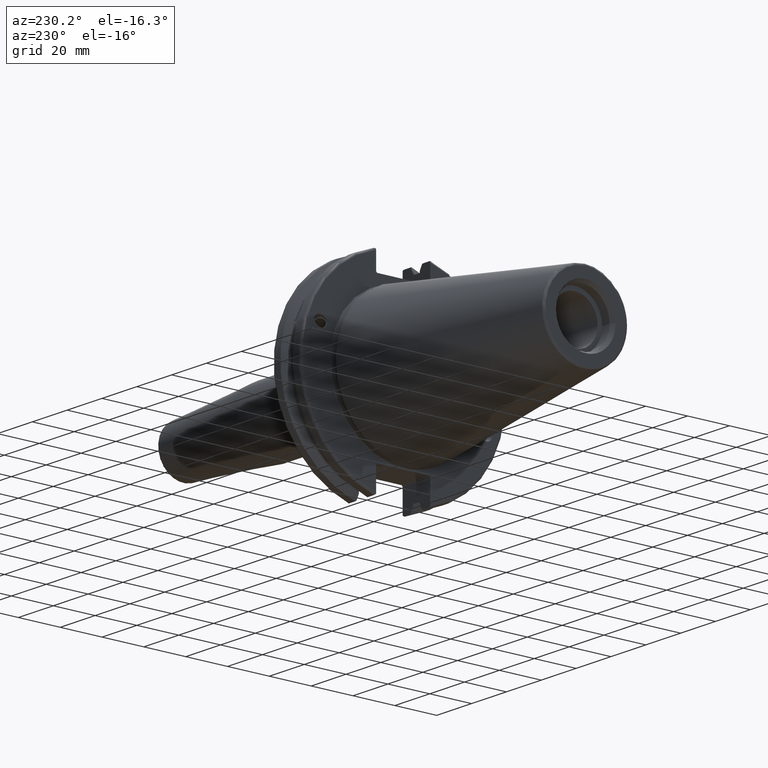
[diagram: clean part render]
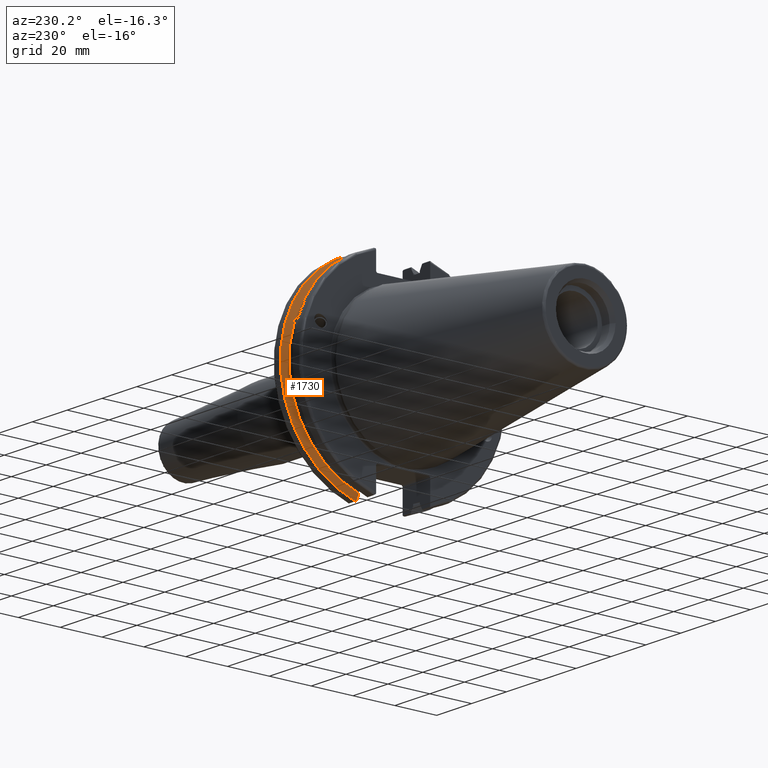
[diagram: same view with one face highlighted and labeled with its STEP entity id]
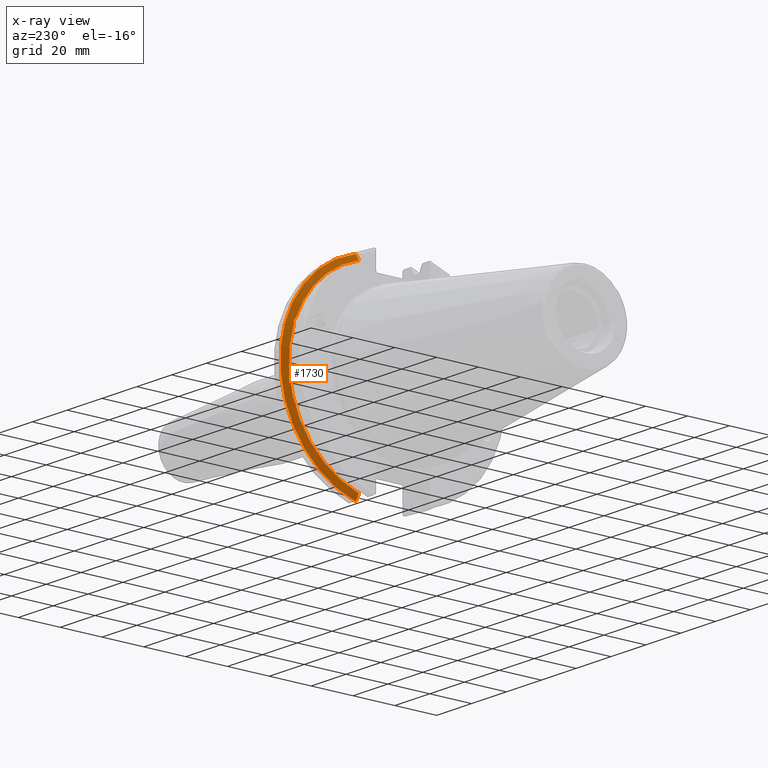
[diagram: x-ray of the same camera — body ghosted, the highlighted face saturated]
A machine part, auxiliary view. The second image highlights one B-rep face of the part: STEP entity #1730.
The next image is the same camera in x-ray: the body ghosted, the highlighted face saturated — about 0% of this face is hidden behind the body in this view.
In plain terms, the highlighted conical surface has half-angle 60 deg.
Its self-contained STEP definition (entity closure, byte-faithful):
#23=(
BOUNDED_CURVE()
B_SPLINE_CURVE(2,(#3375,#3376,#3377),.UNSPECIFIED.,.F.,.F.)
B_SPLINE_CURVE_WITH_KNOTS((3,3),(0.325260944932521,0.390084992222202),
 .UNSPECIFIED.)
CURVE()
GEOMETRIC_REPRESENTATION_ITEM()
RATIONAL_B_SPLINE_CURVE((1.00019140645994,1.00011477674864,1.))
REPRESENTATION_ITEM('')
);
#24=(
BOUNDED_CURVE()
B_SPLINE_CURVE(2,(#3389,#3390,#3391),.UNSPECIFIED.,.F.,.F.)
B_SPLINE_CURVE_WITH_KNOTS((3,3),(0.0558332664532001,0.331657177124504),
 .UNSPECIFIED.)
CURVE()
GEOMETRIC_REPRESENTATION_ITEM()
RATIONAL_B_SPLINE_CURVE((1.00012873636632,1.00038235574022,1.))
REPRESENTATION_ITEM('')
);
#29=(
BOUNDED_CURVE()
B_SPLINE_CURVE(2,(#3554,#3555,#3556),.UNSPECIFIED.,.F.,.F.)
B_SPLINE_CURVE_WITH_KNOTS((3,3),(0.,0.275823910671402),.UNSPECIFIED.)
CURVE()
GEOMETRIC_REPRESENTATION_ITEM()
RATIONAL_B_SPLINE_CURVE((1.,1.00038235574129,1.00012873636668))
REPRESENTATION_ITEM('')
);
#30=(
BOUNDED_CURVE()
B_SPLINE_CURVE(2,(#3571,#3572,#3573),.UNSPECIFIED.,.F.,.F.)
B_SPLINE_CURVE_WITH_KNOTS((3,3),(0.,0.0648240472897064),.UNSPECIFIED.)
CURVE()
GEOMETRIC_REPRESENTATION_ITEM()
RATIONAL_B_SPLINE_CURVE((1.,1.00011477674844,1.00019140645961))
REPRESENTATION_ITEM('')
);
#148=CIRCLE('',#1858,46.4219772964944);
#172=CIRCLE('',#1918,49.2125);
#175=CIRCLE('',#1926,46.4219772964944);
#195=CONICAL_SURFACE('',#1925,47.8172386482472,1.0471975511966);
#281=FACE_OUTER_BOUND('',#399,.T.);
#399=EDGE_LOOP('',(#1555,#1556,#1557,#1558,#1559,#1560,#1561,#1562,#1563));
#446=B_SPLINE_CURVE_WITH_KNOTS('',3,(#3171,#3172,#3173,#3174,#3175,#3176,
#3177,#3178),.UNSPECIFIED.,.F.,.F.,(4,2,2,4),(0.426712868358719,0.441644498666905,
0.480313313223129,0.518982127779353),.UNSPECIFIED.);
#450=B_SPLINE_CURVE_WITH_KNOTS('',3,(#3233,#3234,#3235,#3236,#3237,#3238,
#3239,#3240),.UNSPECIFIED.,.F.,.F.,(4,2,2,4),(0.518982127779353,0.557650942335576,
0.5963197568918,0.611251387199989),.UNSPECIFIED.);
#766=VERTEX_POINT('',#3168);
#767=VERTEX_POINT('',#3170);
#774=VERTEX_POINT('',#3231);
#783=VERTEX_POINT('',#3273);
#811=VERTEX_POINT('',#3372);
#812=VERTEX_POINT('',#3374);
#837=VERTEX_POINT('',#3551);
#838=VERTEX_POINT('',#3553);
#841=VERTEX_POINT('',#3569);
#970=EDGE_CURVE('',#767,#766,#446,.T.);
#978=EDGE_CURVE('',#766,#774,#450,.T.);
#990=EDGE_CURVE('',#783,#767,#148,.T.);
#1027=EDGE_CURVE('',#811,#812,#23,.T.);
#1032=EDGE_CURVE('',#811,#783,#24,.T.);
#1077=EDGE_CURVE('',#838,#837,#29,.T.);
#1085=EDGE_CURVE('',#841,#837,#30,.T.);
#1086=EDGE_CURVE('',#812,#841,#172,.T.);
#1092=EDGE_CURVE('',#774,#838,#175,.T.);
#1555=ORIENTED_EDGE('',*,*,#970,.T.);
#1556=ORIENTED_EDGE('',*,*,#978,.T.);
#1557=ORIENTED_EDGE('',*,*,#1092,.T.);
#1558=ORIENTED_EDGE('',*,*,#1077,.T.);
#1559=ORIENTED_EDGE('',*,*,#1085,.F.);
#1560=ORIENTED_EDGE('',*,*,#1086,.F.);
#1561=ORIENTED_EDGE('',*,*,#1027,.F.);
#1562=ORIENTED_EDGE('',*,*,#1032,.T.);
#1563=ORIENTED_EDGE('',*,*,#990,.T.);
#1730=ADVANCED_FACE('',(#281),#195,.T.);
#1858=AXIS2_PLACEMENT_3D('',#3274,#2181,#2182);
#1918=AXIS2_PLACEMENT_3D('',#3575,#2348,#2349);
#1925=AXIS2_PLACEMENT_3D('',#3588,#2365,#2366);
#1926=AXIS2_PLACEMENT_3D('',#3589,#2367,#2368);
#2181=DIRECTION('center_axis',(1.,0.,0.));
#2182=DIRECTION('ref_axis',(0.,0.,-1.));
#2348=DIRECTION('center_axis',(1.,0.,0.));
#2349=DIRECTION('ref_axis',(0.,0.,-1.));
#2365=DIRECTION('center_axis',(1.,0.,0.));
#2366=DIRECTION('ref_axis',(0.,1.,0.));
#2367=DIRECTION('center_axis',(1.,0.,0.));
#2368=DIRECTION('ref_axis',(0.,0.,-1.));
#3168=CARTESIAN_POINT('',(13.2341,43.923494649906,15.9868446375166));
#3170=CARTESIAN_POINT('',(13.0491,43.9096390749305,15.0646464421033));
#3171=CARTESIAN_POINT('Ctrl Pts',(13.0491,43.9096390749305,15.0646464421033));
#3172=CARTESIAN_POINT('Ctrl Pts',(13.0660815609661,43.9250360001461,15.1104047527575));
#3173=CARTESIAN_POINT('Ctrl Pts',(13.0821132459668,43.9385582852181,15.1564111356409));
#3174=CARTESIAN_POINT('Ctrl Pts',(13.1358132615496,43.9797830409459,15.3217566390709));
#3175=CARTESIAN_POINT('Ctrl Pts',(13.1719838933644,43.9989016655819,15.4570249042868));
#3176=CARTESIAN_POINT('Ctrl Pts',(13.2212913174802,43.9931221605126,15.7289849146254));
#3177=CARTESIAN_POINT('Ctrl Pts',(13.2341,43.9675796948952,15.8657219718732));
#3178=CARTESIAN_POINT('Ctrl Pts',(13.2341,43.923494649906,15.9868446375166));
#3231=CARTESIAN_POINT('',(13.0491,43.3201030900029,16.684383248648));
#3233=CARTESIAN_POINT('Ctrl Pts',(13.2341,43.923494649906,15.9868446375166));
#3234=CARTESIAN_POINT('Ctrl Pts',(13.2341,43.8794096049169,16.10796730316));
#3235=CARTESIAN_POINT('Ctrl Pts',(13.2212913174802,43.8110833825827,16.2291323464527));
#3236=CARTESIAN_POINT('Ctrl Pts',(13.1719838933644,43.6406982153492,16.441180795372));
#3237=CARTESIAN_POINT('Ctrl Pts',(13.1358132615496,43.5391037343221,16.5325130832406));
#3238=CARTESIAN_POINT('Ctrl Pts',(13.0821132459668,43.4012416983557,16.6326763251437));
#3239=CARTESIAN_POINT('Ctrl Pts',(13.0660815609661,43.3613106941341,16.6592273018006));
#3240=CARTESIAN_POINT('Ctrl Pts',(13.0491,43.3201030900029,16.684383248648));
#3273=CARTESIAN_POINT('',(13.0491,12.95,-44.5791147973605));
#3274=CARTESIAN_POINT('Origin',(13.0491,0.,0.));
#3372=CARTESIAN_POINT('',(14.3818103943757,12.95,-46.9780755322918));
#3374=CARTESIAN_POINT('',(14.6602090340487,13.4317035994433,-47.3440544806494));
#3375=CARTESIAN_POINT('Ctrl Pts',(14.3818103943757,12.95,-46.9780755322918));
#3376=CARTESIAN_POINT('Ctrl Pts',(14.5199310333617,13.1896660169965,-47.1601640966264));
#3377=CARTESIAN_POINT('Ctrl Pts',(14.6602090340487,13.4317035994433,-47.3440544806494));
#3389=CARTESIAN_POINT('Ctrl Pts',(14.3818103943757,12.95,-46.9780755322918));
#3390=CARTESIAN_POINT('Ctrl Pts',(13.6979955094851,12.95,-45.7494966802933));
#3391=CARTESIAN_POINT('Ctrl Pts',(13.0491,12.95,-44.5791147973604));
#3551=CARTESIAN_POINT('',(14.3818103943757,12.95,46.9780755322918));
#3553=CARTESIAN_POINT('',(13.0491,12.95,44.5791147973604));
#3554=CARTESIAN_POINT('Ctrl Pts',(13.0491,12.95,44.5791147973604));
#3555=CARTESIAN_POINT('Ctrl Pts',(13.6979955094846,12.95,45.7494966802924));
#3556=CARTESIAN_POINT('Ctrl Pts',(14.3818103943757,12.95,46.9780755322918));
#3569=CARTESIAN_POINT('',(14.6602090340487,13.4317035994433,47.3440544806494));
#3571=CARTESIAN_POINT('Ctrl Pts',(14.6602090340487,13.4317035994433,47.3440544806494));
#3572=CARTESIAN_POINT('Ctrl Pts',(14.5199310333618,13.1896660169966,47.1601640966264));
#3573=CARTESIAN_POINT('Ctrl Pts',(14.3818103943757,12.95,46.9780755322918));
#3575=CARTESIAN_POINT('Origin',(14.6602090340487,0.,0.));
#3588=CARTESIAN_POINT('Origin',(13.8546545170244,0.,0.));
#3589=CARTESIAN_POINT('Origin',(13.0491,0.,0.));